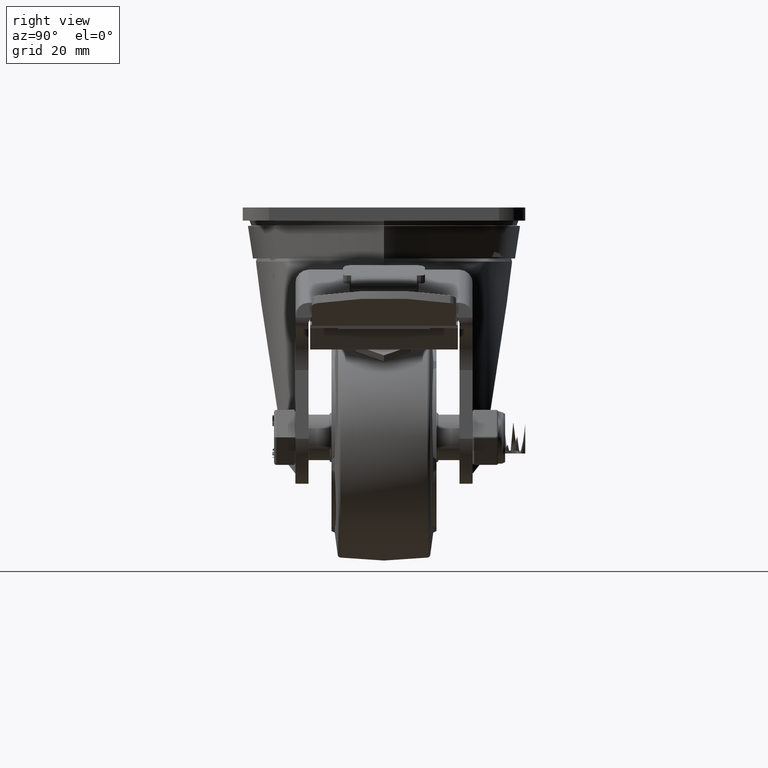
[diagram: clean part render]
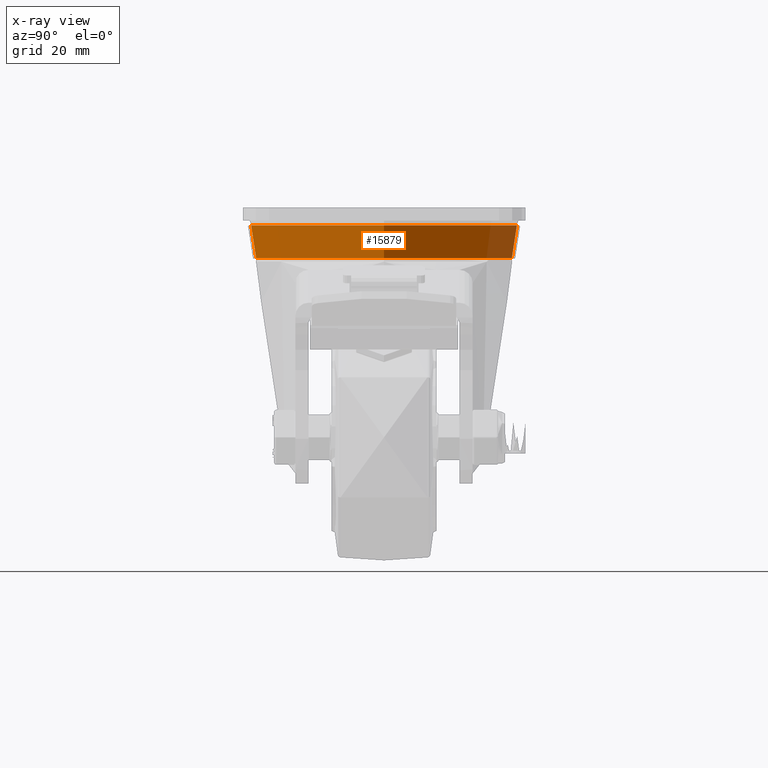
[diagram: x-ray — body ghosted, one internal face saturated and labeled with its STEP entity id]
A machine part, right view, then the same camera in x-ray: the body is ghosted and one INTERNAL B-rep face — a face not visible from any outside direction — is saturated and labeled: STEP entity #15879.
In plain terms, the highlighted conical surface has half-angle 8.973 deg.
Its self-contained STEP definition (entity closure, byte-faithful):
#1464=CONICAL_SURFACE('',#17309,40.7201871326349,0.156601876982015);
#1809=FACE_OUTER_BOUND('',#2803,.T.);
#2803=EDGE_LOOP('',(#11937,#11938,#11939,#11940));
#3992=LINE('',#26178,#5084);
#5084=VECTOR('',#20077,40.7201871326349);
#5938=CIRCLE('',#17308,41.5);
#5939=CIRCLE('',#17310,39.9403742652699);
#7082=VERTEX_POINT('',#26172);
#7083=VERTEX_POINT('',#26176);
#8822=EDGE_CURVE('',#7082,#7082,#5938,.T.);
#8823=EDGE_CURVE('',#7083,#7083,#5939,.T.);
#8824=EDGE_CURVE('',#7083,#7082,#3992,.T.);
#11937=ORIENTED_EDGE('',*,*,#8823,.T.);
#11938=ORIENTED_EDGE('',*,*,#8824,.T.);
#11939=ORIENTED_EDGE('',*,*,#8822,.F.);
#11940=ORIENTED_EDGE('',*,*,#8824,.F.);
#15879=ADVANCED_FACE('',(#1809),#1464,.F.);
#17308=AXIS2_PLACEMENT_3D('',#26174,#20071,#20072);
#17309=AXIS2_PLACEMENT_3D('',#26175,#20073,#20074);
#17310=AXIS2_PLACEMENT_3D('',#26177,#20075,#20076);
#20071=DIRECTION('center_axis',(2.52543396115885E-16,0.,-1.));
#20072=DIRECTION('ref_axis',(-1.,0.,-2.52543396115885E-16));
#20073=DIRECTION('center_axis',(-2.52543396115885E-16,0.,1.));
#20074=DIRECTION('ref_axis',(-1.,0.,-2.52543396115885E-16));
#20075=DIRECTION('center_axis',(2.52543396115885E-16,0.,-1.));
#20076=DIRECTION('ref_axis',(-1.,0.,-2.52543396115885E-16));
#20077=DIRECTION('',(0.15596257347301,1.90999066390506E-17,0.987762965329069));
#26172=CARTESIAN_POINT('',(41.5,5.08228421646152E-15,-5.49999999999998));
#26174=CARTESIAN_POINT('Origin',(-4.57906453361875E-16,0.,-5.49999999999999));
#26175=CARTESIAN_POINT('Origin',(7.89358615746627E-16,0.,-10.4388148266453));
#26176=CARTESIAN_POINT('',(39.9403742652699,4.89128515007101E-15,-15.3776296532907));
#26177=CARTESIAN_POINT('Origin',(2.03662368485513E-15,0.,-15.3776296532907));
#26178=CARTESIAN_POINT('',(40.7201871326349,4.98678468326626E-15,-10.4388148266453));